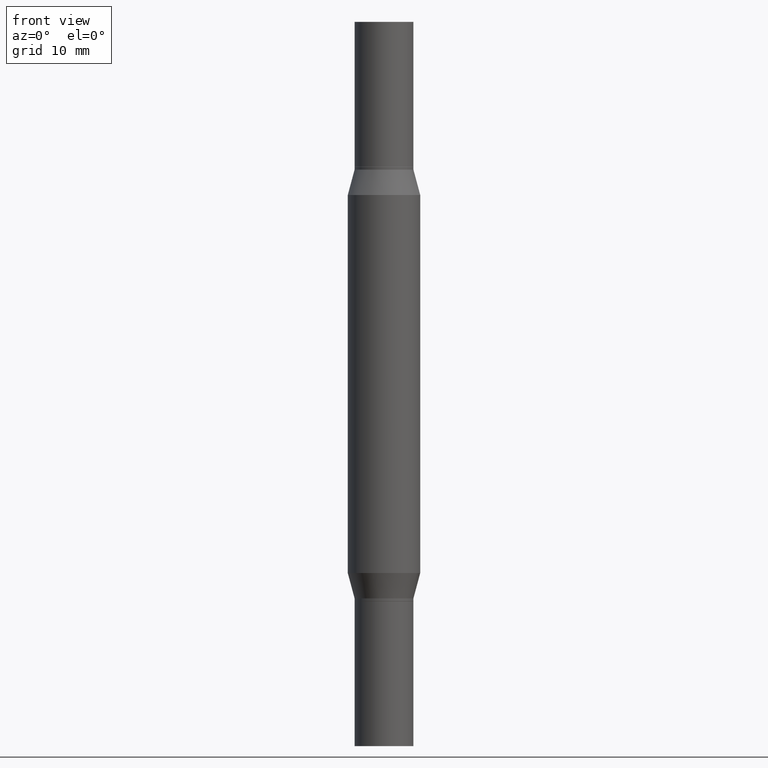
[diagram: clean part render]
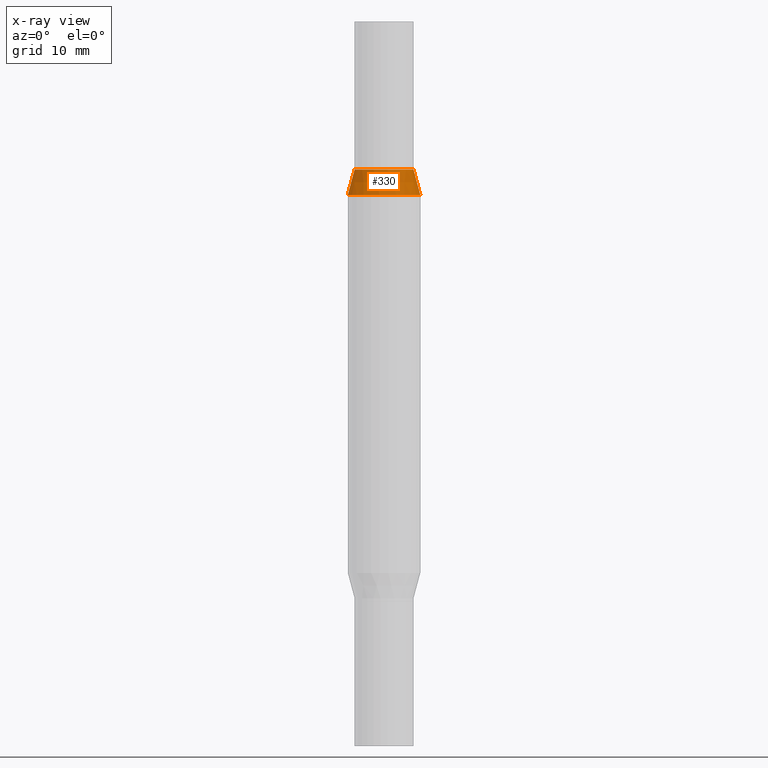
[diagram: x-ray — body ghosted, one internal face saturated and labeled with its STEP entity id]
A machine part, front view, then the same camera in x-ray: the body is ghosted and one INTERNAL B-rep face — a face not visible from any outside direction — is saturated and labeled: STEP entity #330.
In plain terms, the highlighted conical surface has half-angle 15 deg.
Its self-contained STEP definition (entity closure, byte-faithful):
#66 = DIRECTION ( 'NONE',  ( 1.000000000000000000, -6.982962677686266711E-15, 0.000000000000000000 ) ) ;
#70 = EDGE_CURVE ( 'NONE', #548, #342, #75, .T. ) ;
#75 = CIRCLE ( 'NONE', #733, 0.1015499999999997377 ) ;
#95 = EDGE_CURVE ( 'NONE', #777, #134, #683, .T. ) ;
#118 = LINE ( 'NONE', #954, #512 ) ;
#134 = VERTEX_POINT ( 'NONE', #462 ) ;
#152 = AXIS2_PLACEMENT_3D ( 'NONE', #507, #735, #66 ) ;
#209 = ORIENTED_EDGE ( 'NONE', *, *, #802, .T. ) ;
#235 = DIRECTION ( 'NONE',  ( -0.2588190451025219607, -1.597197180879709001E-15, -0.9659258262890678681 ) ) ;
#249 = CARTESIAN_POINT ( 'NONE',  ( -0.1015499999999997377, -1.067146257407934882E-15, -0.5099999999999994538 ) ) ;
#296 = DIRECTION ( 'NONE',  ( 1.000000000000000000, -6.982962677686268288E-15, 0.000000000000000000 ) ) ;
#330 = ADVANCED_FACE ( 'NONE', ( #367 ), #434, .T. ) ;
#342 = VERTEX_POINT ( 'NONE', #906 ) ;
#350 = CARTESIAN_POINT ( 'NONE',  ( 4.866482924308422209E-29, -1.780415903282698911E-15, -0.5099999999999994538 ) ) ;
#353 = DIRECTION ( 'NONE',  ( 2.445468806185136597E-29, 3.491805094961124077E-15, 1.000000000000000000 ) ) ;
#367 = FACE_OUTER_BOUND ( 'NONE', #655, .T. ) ;
#430 = DIRECTION ( 'NONE',  ( -2.445468806185136597E-29, -3.491805094961124077E-15, -1.000000000000000000 ) ) ;
#434 = CONICAL_SURFACE ( 'NONE', #911, 0.1015499999999997377, 0.2617993877991507401 ) ;
#438 = CARTESIAN_POINT ( 'NONE',  ( 4.866482924308422209E-29, -1.780415903282698911E-15, -0.5099999999999994538 ) ) ;
#462 = CARTESIAN_POINT ( 'NONE',  ( 0.1250000000000000000, -2.958877117868543782E-15, -0.5975165914374901410 ) ) ;
#466 = ORIENTED_EDGE ( 'NONE', *, *, #95, .T. ) ;
#507 = CARTESIAN_POINT ( 'NONE',  ( 4.652463829924389037E-29, -2.086006783157758077E-15, -0.5975165914374901410 ) ) ;
#512 = VECTOR ( 'NONE', #641, 39.37007874015748854 ) ;
#548 = VERTEX_POINT ( 'NONE', #249 ) ;
#641 = DIRECTION ( 'NONE',  ( 0.2588190451025219607, -5.180148453816008779E-15, -0.9659258262890678681 ) ) ;
#648 = DIRECTION ( 'NONE',  ( 1.000000000000000000, -6.982962677686268288E-15, 0.000000000000000000 ) ) ;
#651 = LINE ( 'NONE', #755, #781 ) ;
#655 = EDGE_LOOP ( 'NONE', ( #879, #209, #466, #839 ) ) ;
#683 = CIRCLE ( 'NONE', #152, 0.1250000000000000000 ) ;
#733 = AXIS2_PLACEMENT_3D ( 'NONE', #350, #353, #648 ) ;
#735 = DIRECTION ( 'NONE',  ( 2.445468806185136597E-29, 3.491805094961124077E-15, 1.000000000000000000 ) ) ;
#755 = CARTESIAN_POINT ( 'NONE',  ( -0.1015499999999997377, -1.083732331609001856E-15, -0.5099999999999994538 ) ) ;
#777 = VERTEX_POINT ( 'NONE', #945 ) ;
#781 = VECTOR ( 'NONE', #235, 39.37007874015748854 ) ;
#802 = EDGE_CURVE ( 'NONE', #548, #777, #651, .T. ) ;
#831 = EDGE_CURVE ( 'NONE', #342, #134, #118, .T. ) ;
#839 = ORIENTED_EDGE ( 'NONE', *, *, #831, .F. ) ;
#879 = ORIENTED_EDGE ( 'NONE', *, *, #70, .F. ) ;
#906 = CARTESIAN_POINT ( 'NONE',  ( 0.1015499999999997377, -2.489535763201737721E-15, -0.5099999999999994538 ) ) ;
#911 = AXIS2_PLACEMENT_3D ( 'NONE', #438, #430, #296 ) ;
#945 = CARTESIAN_POINT ( 'NONE',  ( -0.1250000000000000000, -1.228444533436318603E-15, -0.5975165914374901410 ) ) ;
#954 = CARTESIAN_POINT ( 'NONE',  ( 0.1015499999999997377, -2.489535763201737721E-15, -0.5099999999999994538 ) ) ;